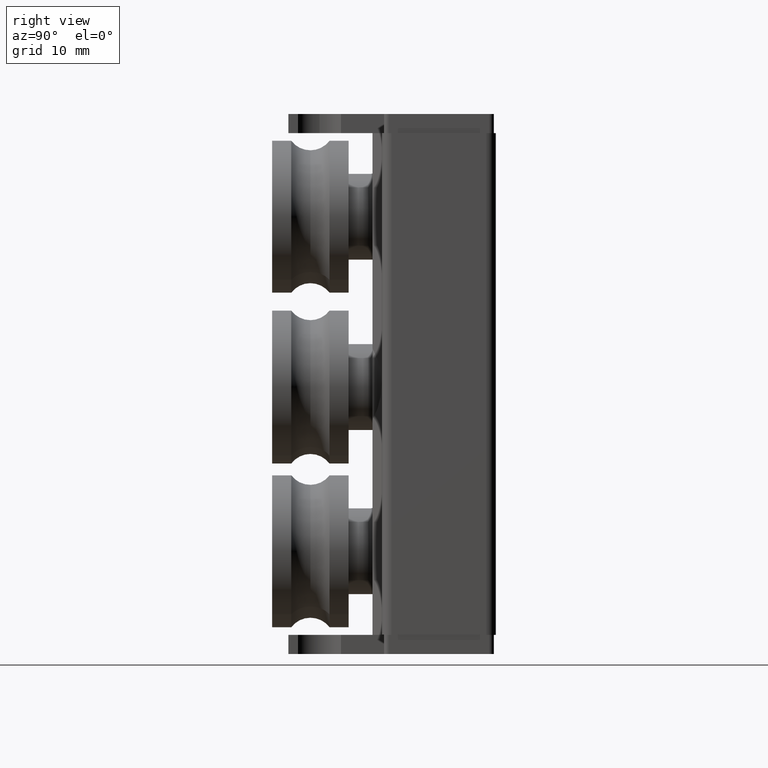
[diagram: clean part render]
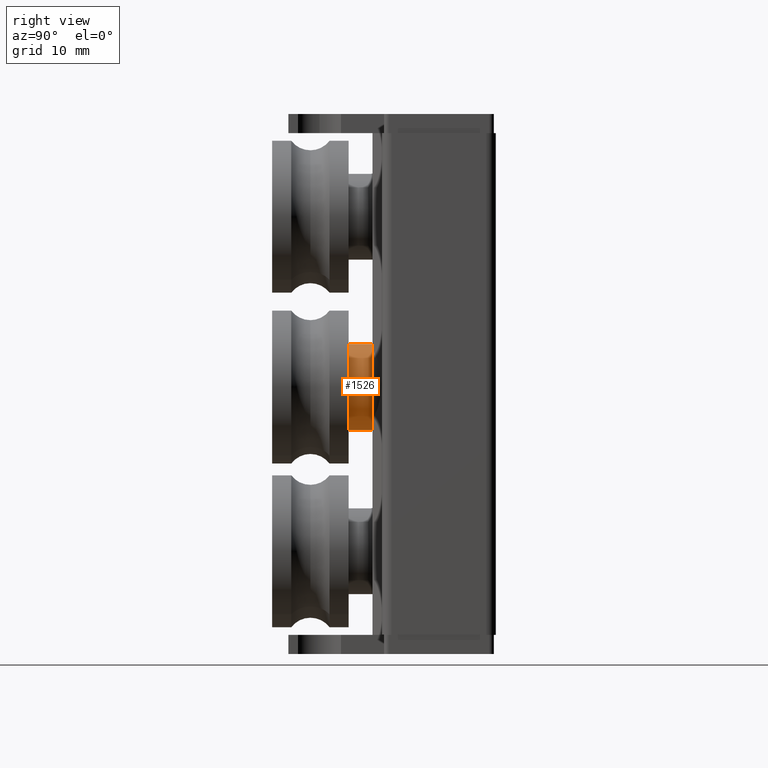
[diagram: same view with one face highlighted and labeled with its STEP entity id]
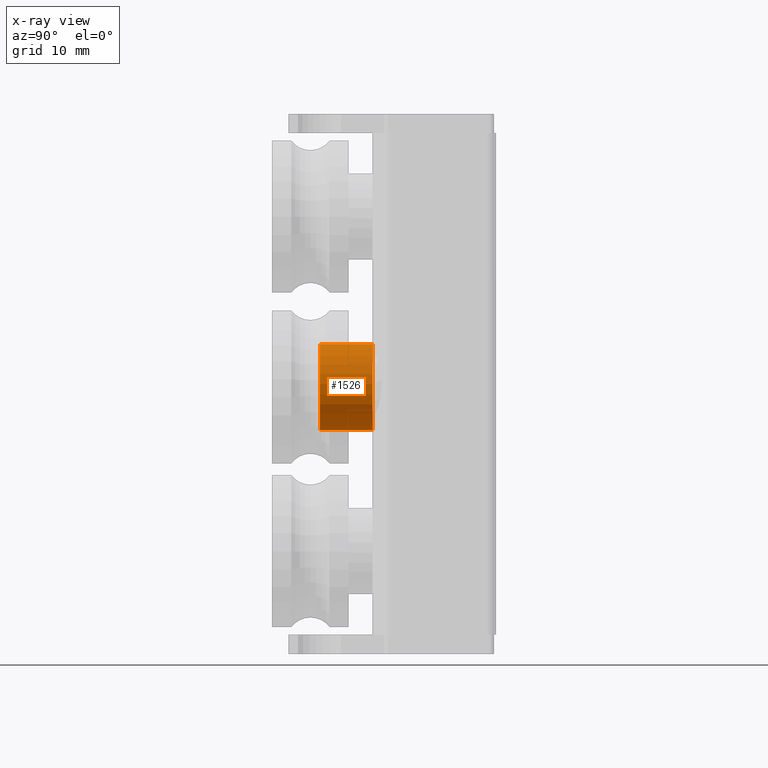
[diagram: x-ray of the same camera — body ghosted, the highlighted face saturated]
A machine part, right view. The second image highlights one B-rep face of the part: STEP entity #1526.
The next image is the same camera in x-ray: the body ghosted, the highlighted face saturated — about 0% of this face is hidden behind the body in this view.
In plain terms, the highlighted cylindrical surface (partial cylindrical patch) has radius 4.5 mm, axis along (-0, -1, 0).
Its self-contained STEP definition (entity closure, byte-faithful):
#89 = DIRECTION ( 'NONE',  ( 1.000000000000000000, 0.000000000000000000, 0.000000000000000000 ) ) ;
#842 = FACE_OUTER_BOUND ( 'NONE', #1946, .T. ) ;
#882 = ORIENTED_EDGE ( 'NONE', *, *, #2787, .F. ) ;
#1074 = LINE ( 'NONE', #2935, #1259 ) ;
#1259 = VECTOR ( 'NONE', #4779, 1000.000000000000000 ) ;
#1442 = EDGE_CURVE ( 'NONE', #4683, #3850, #3301, .T. ) ;
#1459 = ORIENTED_EDGE ( 'NONE', *, *, #2080, .T. ) ;
#1498 = AXIS2_PLACEMENT_3D ( 'NONE', #3757, #1606, #2678 ) ;
#1526 = ADVANCED_FACE ( 'NONE', ( #842 ), #3442, .T. ) ;
#1606 = DIRECTION ( 'NONE',  ( -0.000000000000000000, -0.000000000000000000, -1.000000000000000000 ) ) ;
#1620 = DIRECTION ( 'NONE',  ( 0.000000000000000000, 0.000000000000000000, 1.000000000000000000 ) ) ;
#1842 = CIRCLE ( 'NONE', #4557, 4.500000000000000000 ) ;
#1946 = EDGE_LOOP ( 'NONE', ( #4191, #4389, #1459, #882 ) ) ;
#2080 = EDGE_CURVE ( 'NONE', #3850, #4673, #1842, .T. ) ;
#2192 = AXIS2_PLACEMENT_3D ( 'NONE', #3779, #3416, #89 ) ;
#2220 = VECTOR ( 'NONE', #4030, 1000.000000000000000 ) ;
#2330 = CARTESIAN_POINT ( 'NONE',  ( -4.500000000000000000, 0.000000000000000000, 0.000000000000000000 ) ) ;
#2542 = CARTESIAN_POINT ( 'NONE',  ( 4.500000000000000000, 5.510910596163088569E-16, 5.500000000000000000 ) ) ;
#2678 = DIRECTION ( 'NONE',  ( -1.000000000000000000, 0.000000000000000000, 0.000000000000000000 ) ) ;
#2787 = EDGE_CURVE ( 'NONE', #4492, #4673, #1074, .T. ) ;
#2826 = CARTESIAN_POINT ( 'NONE',  ( -4.500000000000000000, 0.000000000000000000, 5.500000000000000000 ) ) ;
#2935 = CARTESIAN_POINT ( 'NONE',  ( -4.500000000000000000, 0.000000000000000000, 5.500000000000000000 ) ) ;
#3214 = CARTESIAN_POINT ( 'NONE',  ( 4.500000000000000000, 5.510910596163088569E-16, 0.000000000000000000 ) ) ;
#3301 = LINE ( 'NONE', #2542, #2220 ) ;
#3416 = DIRECTION ( 'NONE',  ( 0.000000000000000000, 0.000000000000000000, 1.000000000000000000 ) ) ;
#3442 = CYLINDRICAL_SURFACE ( 'NONE', #1498, 4.500000000000000000 ) ;
#3645 = EDGE_CURVE ( 'NONE', #4683, #4492, #4644, .T. ) ;
#3757 = CARTESIAN_POINT ( 'NONE',  ( 0.000000000000000000, 0.000000000000000000, 5.500000000000000000 ) ) ;
#3779 = CARTESIAN_POINT ( 'NONE',  ( 0.000000000000000000, 0.000000000000000000, 5.500000000000000000 ) ) ;
#3794 = DIRECTION ( 'NONE',  ( 1.000000000000000000, 0.000000000000000000, 0.000000000000000000 ) ) ;
#3850 = VERTEX_POINT ( 'NONE', #3214 ) ;
#4030 = DIRECTION ( 'NONE',  ( -0.000000000000000000, -0.000000000000000000, -1.000000000000000000 ) ) ;
#4191 = ORIENTED_EDGE ( 'NONE', *, *, #3645, .F. ) ;
#4389 = ORIENTED_EDGE ( 'NONE', *, *, #1442, .T. ) ;
#4492 = VERTEX_POINT ( 'NONE', #2826 ) ;
#4496 = CARTESIAN_POINT ( 'NONE',  ( 0.000000000000000000, 0.000000000000000000, 0.000000000000000000 ) ) ;
#4557 = AXIS2_PLACEMENT_3D ( 'NONE', #4496, #1620, #3794 ) ;
#4564 = CARTESIAN_POINT ( 'NONE',  ( 4.500000000000000000, 5.510910596163088569E-16, 5.500000000000000000 ) ) ;
#4644 = CIRCLE ( 'NONE', #2192, 4.500000000000000000 ) ;
#4673 = VERTEX_POINT ( 'NONE', #2330 ) ;
#4683 = VERTEX_POINT ( 'NONE', #4564 ) ;
#4779 = DIRECTION ( 'NONE',  ( -0.000000000000000000, -0.000000000000000000, -1.000000000000000000 ) ) ;